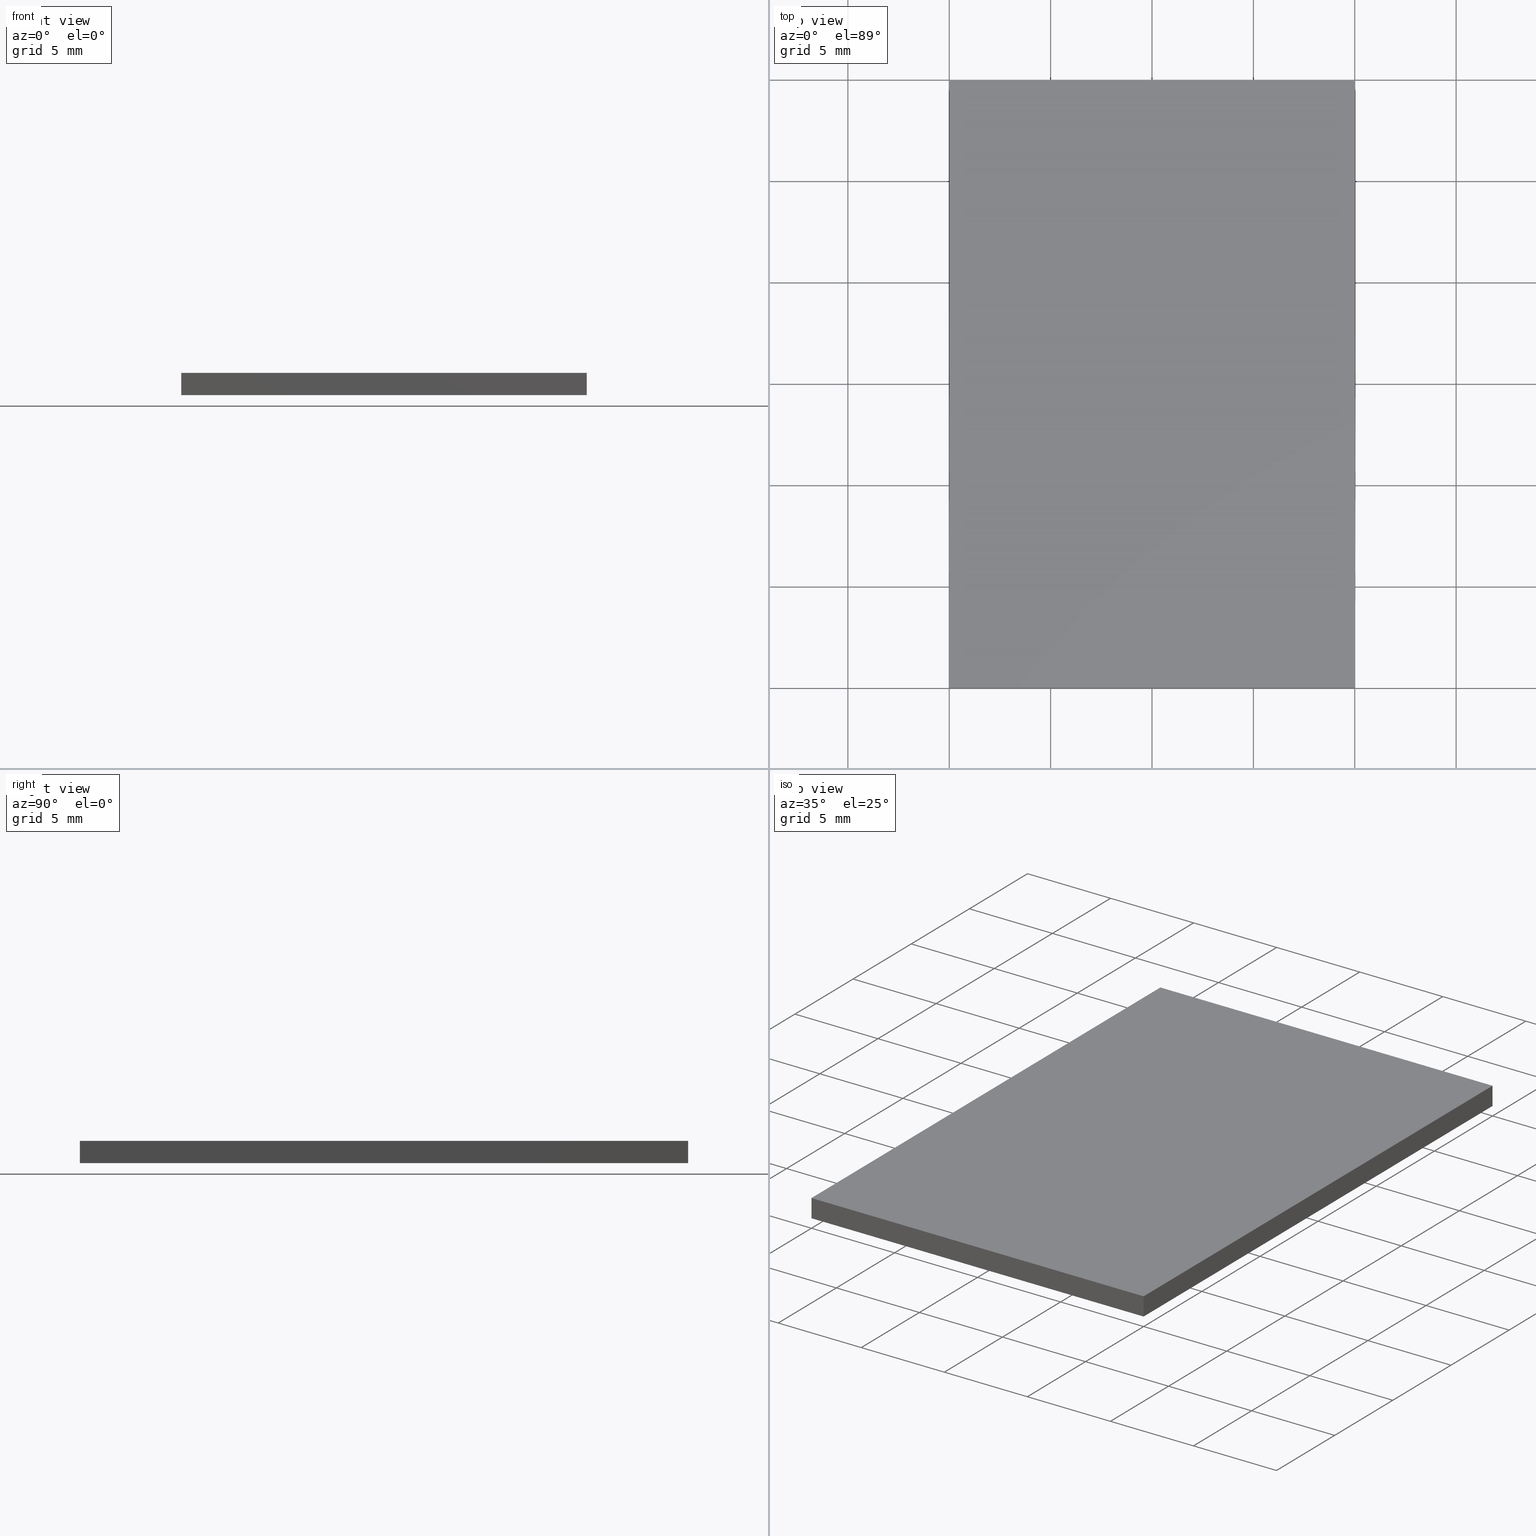
[diagram: canonical four-view strip — front | top / right | iso, engineering-drawing reading convention]
A machine part, canonical four-view strip (front | top / right | iso — engineering-drawing reading convention). The complete STEP part file that produces these views, byte-faithful:
ISO-10303-21;
HEADER;
FILE_DESCRIPTION (( 'STEP AP203' ),
    '1' );
FILE_NAME ('348503.STEP',
    '2019-07-31T07:07:42',
    ( '' ),
    ( '' ),
    'SwSTEP 2.0',
    'SolidWorks 2016',
    '' );
FILE_SCHEMA (( 'CONFIG_CONTROL_DESIGN' ));
ENDSEC;

DATA;
#1 = APPROVAL_PERSON_ORGANIZATION ( #162, #69, #133 ) ;
#2 = VECTOR ( 'NONE', #271, 1000.000000000000000 ) ;
#3 = DIRECTION ( 'NONE',  ( -1.000000000000000000, 0.0000000000000000000, -0.0000000000000000000 ) ) ;
#4 = COORDINATED_UNIVERSAL_TIME_OFFSET ( 8, 0, .AHEAD. ) ;
#5 = CARTESIAN_POINT ( 'NONE',  ( 0.0000000000000000000, 0.0000000000000000000, 0.0000000000000000000 ) ) ;
#6 = AXIS2_PLACEMENT_3D ( 'NONE', #301, #53, #303 ) ;
#7 = CARTESIAN_POINT ( 'NONE',  ( -10.00000000000000200, -14.99999999999999600, 1.100000000000000100 ) ) ;
#8 = CARTESIAN_POINT ( 'NONE',  ( -10.00000000000000200, 15.00000000000000400, 1.100000000000000100 ) ) ;
#9 = DATE_AND_TIME ( #70, #16 ) ;
#10 = ORIENTED_EDGE ( 'NONE', *, *, #236, .T. ) ;
#11 = APPLICATION_CONTEXT ( 'configuration controlled 3d designs of mechanical parts and assemblies' ) ;
#12 = EDGE_CURVE ( 'NONE', #298, #158, #166, .T. ) ;
#13 = ORIENTED_EDGE ( 'NONE', *, *, #283, .F. ) ;
#14 = LOCAL_TIME ( 15, 7, 42.00000000000000000, #77 ) ;
#15 = ADVANCED_FACE ( 'NONE', ( #41 ), #294, .F. ) ;
#16 = LOCAL_TIME ( 15, 7, 42.00000000000000000, #310 ) ;
#17 = CARTESIAN_POINT ( 'NONE',  ( -10.00000000000000200, -14.99999999999999600, 0.0000000000000000000 ) ) ;
#18 = CC_DESIGN_SECURITY_CLASSIFICATION ( #215, ( #235 ) ) ;
#19 = CALENDAR_DATE ( 2019, 31, 7 ) ;
#20 = EDGE_CURVE ( 'NONE', #193, #72, #65, .T. ) ;
#21 = LINE ( 'NONE', #212, #308 ) ;
#22 = CC_DESIGN_PERSON_AND_ORGANIZATION_ASSIGNMENT ( #59, #38, ( #222 ) ) ;
#23 = CARTESIAN_POINT ( 'NONE',  ( -10.00000000000000200, -14.99999999999999600, 1.100000000000000100 ) ) ;
#24 = ORIENTED_EDGE ( 'NONE', *, *, #66, .F. ) ;
#25 = PRODUCT_DEFINITION ( 'δ֪', '', #235, #93 ) ;
#26 = COORDINATED_UNIVERSAL_TIME_OFFSET ( 8, 0, .AHEAD. ) ;
#27 = DIRECTION ( 'NONE',  ( -0.0000000000000000000, -0.0000000000000000000, -1.000000000000000000 ) ) ;
#28 = DIRECTION ( 'NONE',  ( 1.000000000000000000, 0.0000000000000000000, 0.0000000000000000000 ) ) ;
#29 = VECTOR ( 'NONE', #175, 1000.000000000000000 ) ;
#30 = CARTESIAN_POINT ( 'NONE',  ( 9.999999999999998200, 15.00000000000000400, 1.100000000000000100 ) ) ;
#31 = ORIENTED_EDGE ( 'NONE', *, *, #242, .F. ) ;
#32 = APPLICATION_PROTOCOL_DEFINITION ( 'international standard', 'config_control_design', 1994, #307 ) ;
#33 = DIRECTION ( 'NONE',  ( -1.000000000000000000, -0.0000000000000000000, -0.0000000000000000000 ) ) ;
#34 = APPLICATION_CONTEXT ( 'configuration controlled 3d designs of mechanical parts and assemblies' ) ;
#35 = CARTESIAN_POINT ( 'NONE',  ( 9.999999999999998200, 15.00000000000000400, 1.100000000000000100 ) ) ;
#36 =( LENGTH_UNIT ( ) NAMED_UNIT ( * ) SI_UNIT ( .MILLI., .METRE. ) );
#37 = PERSON_AND_ORGANIZATION_ROLE ( 'creator' ) ;
#38 = PERSON_AND_ORGANIZATION_ROLE ( 'creator' ) ;
#39 = COORDINATED_UNIVERSAL_TIME_OFFSET ( 8, 0, .AHEAD. ) ;
#40 = EDGE_CURVE ( 'NONE', #72, #298, #147, .T. ) ;
#41 = FACE_OUTER_BOUND ( 'NONE', #302, .T. ) ;
#42 = CALENDAR_DATE ( 2019, 31, 7 ) ;
#43 = CC_DESIGN_DATE_AND_TIME_ASSIGNMENT ( #123, #107, ( #121 ) ) ;
#44 = CC_DESIGN_DATE_AND_TIME_ASSIGNMENT ( #64, #250, ( #25 ) ) ;
#45 = ADVANCED_BREP_SHAPE_REPRESENTATION ( '348503', ( #163, #104 ), #114 ) ;
#46 = EDGE_CURVE ( 'NONE', #159, #158, #256, .T. ) ;
#47 = DATE_AND_TIME ( #216, #115 ) ;
#48 = ADVANCED_FACE ( 'NONE', ( #141 ), #126, .T. ) ;
#49 = CALENDAR_DATE ( 2019, 31, 7 ) ;
#50 = CARTESIAN_POINT ( 'NONE',  ( -10.00000000000000200, 15.00000000000000400, 1.100000000000000100 ) ) ;
#51 = DIRECTION ( 'NONE',  ( -1.000000000000000000, 0.0000000000000000000, 0.0000000000000000000 ) ) ;
#52 = PERSON_AND_ORGANIZATION ( #220, #237 ) ;
#53 = DIRECTION ( 'NONE',  ( 0.0000000000000000000, 1.000000000000000000, 0.0000000000000000000 ) ) ;
#54 = CC_DESIGN_DATE_AND_TIME_ASSIGNMENT ( #313, #103, ( #266 ) ) ;
#55 = APPROVAL_ROLE ( '' ) ;
#56 = PLANE ( 'NONE',  #151 ) ;
#57 = MECHANICAL_CONTEXT ( 'NONE', #307, 'mechanical' ) ;
#58 = CC_DESIGN_PERSON_AND_ORGANIZATION_ASSIGNMENT ( #239, #37, ( #235 ) ) ;
#59 = PERSON_AND_ORGANIZATION ( #220, #237 ) ;
#60 = DIRECTION ( 'NONE',  ( -0.0000000000000000000, -0.0000000000000000000, -1.000000000000000000 ) ) ;
#61 = ORIENTED_EDGE ( 'NONE', *, *, #66, .T. ) ;
#62 = PERSON_AND_ORGANIZATION ( #220, #237 ) ;
#63 = DESIGN_CONTEXT ( 'detailed design', #34, 'design' ) ;
#64 = DATE_AND_TIME ( #19, #196 ) ;
#65 = LINE ( 'NONE', #274, #2 ) ;
#66 = EDGE_CURVE ( 'NONE', #193, #164, #138, .T. ) ;
#67 = SHAPE_DEFINITION_REPRESENTATION ( #241, #45 ) ;
#68 = PLANE ( 'NONE',  #173 ) ;
#69 = APPROVAL ( #177, 'δָ��' ) ;
#70 = CALENDAR_DATE ( 2019, 31, 7 ) ;
#71 = DIRECTION ( 'NONE',  ( -0.0000000000000000000, -0.0000000000000000000, -1.000000000000000000 ) ) ;
#72 = VERTEX_POINT ( 'NONE', #30 ) ;
#73 = CC_DESIGN_DATE_AND_TIME_ASSIGNMENT ( #9, #130, ( #215 ) ) ;
#74 = APPROVAL_PERSON_ORGANIZATION ( #112, #233, #105 ) ;
#75 = AXIS2_PLACEMENT_3D ( 'NONE', #23, #142, #315 ) ;
#76 = DIRECTION ( 'NONE',  ( 0.0000000000000000000, -1.000000000000000000, 0.0000000000000000000 ) ) ;
#77 = COORDINATED_UNIVERSAL_TIME_OFFSET ( 8, 0, .AHEAD. ) ;
#78 = CARTESIAN_POINT ( 'NONE',  ( -10.00000000000000200, -14.99999999999999600, 1.100000000000000100 ) ) ;
#79 = VECTOR ( 'NONE', #60, 1000.000000000000000 ) ;
#80 = DIRECTION ( 'NONE',  ( 0.0000000000000000000, 0.0000000000000000000, 1.000000000000000000 ) ) ;
#81 = PERSON_AND_ORGANIZATION_ROLE ( 'design_owner' ) ;
#82 = COORDINATED_UNIVERSAL_TIME_OFFSET ( 8, 0, .AHEAD. ) ;
#83 = MECHANICAL_CONTEXT ( 'NONE', #11, 'mechanical' ) ;
#84 = DIRECTION ( 'NONE',  ( 0.0000000000000000000, 1.000000000000000000, 0.0000000000000000000 ) ) ;
#85 = DIRECTION ( 'NONE',  ( 0.0000000000000000000, 0.0000000000000000000, 1.000000000000000000 ) ) ;
#86 = APPROVAL_DATE_TIME ( #127, #270 ) ;
#87 = LINE ( 'NONE', #78, #232 ) ;
#88 = CC_DESIGN_PERSON_AND_ORGANIZATION_ASSIGNMENT ( #169, #253, ( #121 ) ) ;
#89 = ORIENTED_EDGE ( 'NONE', *, *, #236, .F. ) ;
#90 = APPROVAL ( #178, 'δָ��' ) ;
#91 = EDGE_CURVE ( 'NONE', #298, #120, #87, .T. ) ;
#92 = PERSON_AND_ORGANIZATION ( #220, #237 ) ;
#93 = DESIGN_CONTEXT ( 'detailed design', #199, 'design' ) ;
#94 = ORIENTED_EDGE ( 'NONE', *, *, #124, .F. ) ;
#95 = CC_DESIGN_SECURITY_CLASSIFICATION ( #266, ( #222 ) ) ;
#96 = ORIENTED_EDGE ( 'NONE', *, *, #46, .T. ) ;
#97 = ORIENTED_EDGE ( 'NONE', *, *, #12, .F. ) ;
#98 = CARTESIAN_POINT ( 'NONE',  ( 9.999999999999998200, -14.99999999999999600, 1.100000000000000100 ) ) ;
#99 = APPROVAL_PERSON_ORGANIZATION ( #110, #135, #174 ) ;
#100 = FACE_OUTER_BOUND ( 'NONE', #213, .T. ) ;
#101 = CARTESIAN_POINT ( 'NONE',  ( 9.999999999999998200, 15.00000000000000400, 0.0000000000000000000 ) ) ;
#102 = CARTESIAN_POINT ( 'NONE',  ( -10.00000000000000200, 15.00000000000000400, 1.100000000000000100 ) ) ;
#103 = DATE_TIME_ROLE ( 'classification_date' ) ;
#104 = AXIS2_PLACEMENT_3D ( 'NONE', #254, #155, #227 ) ;
#105 = APPROVAL_ROLE ( '' ) ;
#106 = SECURITY_CLASSIFICATION_LEVEL ( 'unclassified' ) ;
#107 = DATE_TIME_ROLE ( 'creation_date' ) ;
#108 = CC_DESIGN_APPROVAL ( #90, ( #215 ) ) ;
#109 = APPLICATION_PROTOCOL_DEFINITION ( 'international standard', 'config_control_design', 1994, #34 ) ;
#110 = PERSON_AND_ORGANIZATION ( #220, #237 ) ;
#111 = UNCERTAINTY_MEASURE_WITH_UNIT (LENGTH_MEASURE( 1.000000000000000100E-005 ), #36, 'distance_accuracy_value', 'NONE');
#112 = PERSON_AND_ORGANIZATION ( #220, #237 ) ;
#113 = LINE ( 'NONE', #7, #79 ) ;
#114 =( GEOMETRIC_REPRESENTATION_CONTEXT ( 3 ) GLOBAL_UNCERTAINTY_ASSIGNED_CONTEXT ( ( #111 ) ) GLOBAL_UNIT_ASSIGNED_CONTEXT ( ( #36, #129, #179 ) ) REPRESENTATION_CONTEXT ( 'NONE', 'WORKASPACE' ) );
#115 = LOCAL_TIME ( 15, 7, 42.00000000000000000, #39 ) ;
#116 = AXIS2_PLACEMENT_3D ( 'NONE', #5, #299, #3 ) ;
#117 = APPROVAL_DATE_TIME ( #246, #191 ) ;
#118 = FACE_OUTER_BOUND ( 'NONE', #219, .T. ) ;
#119 = CALENDAR_DATE ( 2019, 31, 7 ) ;
#120 = VERTEX_POINT ( 'NONE', #150 ) ;
#121 = PRODUCT_DEFINITION ( 'δ֪', '', #222, #63 ) ;
#122 = DIRECTION ( 'NONE',  ( 0.0000000000000000000, 0.0000000000000000000, -1.000000000000000000 ) ) ;
#123 = DATE_AND_TIME ( #119, #134 ) ;
#124 = EDGE_CURVE ( 'NONE', #120, #193, #182, .T. ) ;
#125 = VECTOR ( 'NONE', #84, 1000.000000000000000 ) ;
#126 = PLANE ( 'NONE',  #116 ) ;
#127 = DATE_AND_TIME ( #49, #186 ) ;
#128 = CARTESIAN_POINT ( 'NONE',  ( -10.00000000000000200, 15.00000000000000400, 0.0000000000000000000 ) ) ;
#129 =( NAMED_UNIT ( * ) PLANE_ANGLE_UNIT ( ) SI_UNIT ( $, .RADIAN. ) );
#130 = DATE_TIME_ROLE ( 'classification_date' ) ;
#131 = PERSON_AND_ORGANIZATION ( #220, #237 ) ;
#132 = APPROVAL_STATUS ( 'not_yet_approved' ) ;
#133 = APPROVAL_ROLE ( '' ) ;
#134 = LOCAL_TIME ( 15, 7, 42.00000000000000000, #157 ) ;
#135 = APPROVAL ( #205, 'δָ��' ) ;
#136 = ORIENTED_EDGE ( 'NONE', *, *, #12, .T. ) ;
#137 = DIRECTION ( 'NONE',  ( -0.0000000000000000000, -1.000000000000000000, -0.0000000000000000000 ) ) ;
#138 = LINE ( 'NONE', #145, #187 ) ;
#139 = APPROVAL_PERSON_ORGANIZATION ( #131, #90, #204 ) ;
#140 = CC_DESIGN_PERSON_AND_ORGANIZATION_ASSIGNMENT ( #171, #154, ( #197 ) ) ;
#141 = FACE_OUTER_BOUND ( 'NONE', #291, .T. ) ;
#142 = DIRECTION ( 'NONE',  ( 1.000000000000000000, 0.0000000000000000000, 0.0000000000000000000 ) ) ;
#143 = ORIENTED_EDGE ( 'NONE', *, *, #296, .T. ) ;
#144 = APPROVAL_PERSON_ORGANIZATION ( #189, #270, #55 ) ;
#145 = CARTESIAN_POINT ( 'NONE',  ( 9.999999999999998200, -14.99999999999999600, 1.100000000000000100 ) ) ;
#146 = DIRECTION ( 'NONE',  ( -0.0000000000000000000, -0.0000000000000000000, -1.000000000000000000 ) ) ;
#147 = LINE ( 'NONE', #102, #273 ) ;
#148 = ORIENTED_EDGE ( 'NONE', *, *, #242, .T. ) ;
#149 = CARTESIAN_POINT ( 'NONE',  ( -10.00000000000000200, -14.99999999999999600, 0.0000000000000000000 ) ) ;
#150 = CARTESIAN_POINT ( 'NONE',  ( -10.00000000000000200, -14.99999999999999600, 1.100000000000000100 ) ) ;
#151 = AXIS2_PLACEMENT_3D ( 'NONE', #50, #76, #244 ) ;
#152 = PERSON_AND_ORGANIZATION_ROLE ( 'design_supplier' ) ;
#153 = CLOSED_SHELL ( 'NONE', ( #263, #161, #15, #288, #260, #48 ) ) ;
#154 = PERSON_AND_ORGANIZATION_ROLE ( 'design_owner' ) ;
#155 = DIRECTION ( 'NONE',  ( 0.0000000000000000000, 0.0000000000000000000, 1.000000000000000000 ) ) ;
#156 = CC_DESIGN_PERSON_AND_ORGANIZATION_ASSIGNMENT ( #207, #305, ( #235 ) ) ;
#157 = COORDINATED_UNIVERSAL_TIME_OFFSET ( 8, 0, .AHEAD. ) ;
#158 = VERTEX_POINT ( 'NONE', #277 ) ;
#159 = VERTEX_POINT ( 'NONE', #101 ) ;
#160 = EDGE_LOOP ( 'NONE', ( #211, #280, #293, #218 ) ) ;
#161 = ADVANCED_FACE ( 'NONE', ( #118 ), #56, .F. ) ;
#162 = PERSON_AND_ORGANIZATION ( #220, #237 ) ;
#163 = MANIFOLD_SOLID_BREP ( '͹̨-����1', #153 ) ;
#164 = VERTEX_POINT ( 'NONE', #248 ) ;
#165 = VECTOR ( 'NONE', #28, 1000.000000000000000 ) ;
#166 = LINE ( 'NONE', #214, #195 ) ;
#167 = LOCAL_TIME ( 15, 7, 42.00000000000000000, #292 ) ;
#168 = AXIS2_PLACEMENT_3D ( 'NONE', #228, #80, #304 ) ;
#169 = PERSON_AND_ORGANIZATION ( #220, #237 ) ;
#170 = PLANE ( 'NONE',  #6 ) ;
#171 = PERSON_AND_ORGANIZATION ( #220, #237 ) ;
#172 = DIRECTION ( 'NONE',  ( -0.0000000000000000000, -1.000000000000000000, -0.0000000000000000000 ) ) ;
#173 = AXIS2_PLACEMENT_3D ( 'NONE', #223, #51, #85 ) ;
#174 = APPROVAL_ROLE ( '' ) ;
#175 = DIRECTION ( 'NONE',  ( -1.000000000000000000, -0.0000000000000000000, -0.0000000000000000000 ) ) ;
#176 = APPLICATION_PROTOCOL_DEFINITION ( 'international standard', 'config_control_design', 1994, #11 ) ;
#177 = APPROVAL_STATUS ( 'not_yet_approved' ) ;
#178 = APPROVAL_STATUS ( 'not_yet_approved' ) ;
#179 =( NAMED_UNIT ( * ) SI_UNIT ( $, .STERADIAN. ) SOLID_ANGLE_UNIT ( ) );
#180 = APPROVAL_DATE_TIME ( #192, #90 ) ;
#181 = DIRECTION ( 'NONE',  ( 1.000000000000000000, 0.0000000000000000000, 0.0000000000000000000 ) ) ;
#182 = LINE ( 'NONE', #217, #165 ) ;
#183 = FACE_OUTER_BOUND ( 'NONE', #160, .T. ) ;
#184 = APPROVAL_DATE_TIME ( #243, #69 ) ;
#185 = CC_DESIGN_APPROVAL ( #135, ( #222 ) ) ;
#186 = LOCAL_TIME ( 15, 7, 42.00000000000000000, #284 ) ;
#187 = VECTOR ( 'NONE', #27, 1000.000000000000000 ) ;
#188 = LINE ( 'NONE', #229, #125 ) ;
#189 = PERSON_AND_ORGANIZATION ( #220, #237 ) ;
#190 = CC_DESIGN_APPROVAL ( #233, ( #121 ) ) ;
#191 = APPROVAL ( #278, 'δָ��' ) ;
#192 = DATE_AND_TIME ( #234, #14 ) ;
#193 = VERTEX_POINT ( 'NONE', #98 ) ;
#194 = PRODUCT ( '348503', '348503', '', ( #57 ) ) ;
#195 = VECTOR ( 'NONE', #71, 1000.000000000000000 ) ;
#196 = LOCAL_TIME ( 15, 7, 42.00000000000000000, #4 ) ;
#197 = PRODUCT ( '348503', '348503', '', ( #83 ) ) ;
#198 = EDGE_LOOP ( 'NONE', ( #249, #89, #226, #61 ) ) ;
#199 = APPLICATION_CONTEXT ( 'configuration controlled 3d designs of mechanical parts and assemblies' ) ;
#200 = ORIENTED_EDGE ( 'NONE', *, *, #296, .F. ) ;
#201 = APPROVAL_STATUS ( 'not_yet_approved' ) ;
#202 = CC_DESIGN_PERSON_AND_ORGANIZATION_ASSIGNMENT ( #203, #152, ( #222 ) ) ;
#203 = PERSON_AND_ORGANIZATION ( #220, #237 ) ;
#204 = APPROVAL_ROLE ( '' ) ;
#205 = APPROVAL_STATUS ( 'not_yet_approved' ) ;
#206 = CC_DESIGN_PERSON_AND_ORGANIZATION_ASSIGNMENT ( #62, #225, ( #25 ) ) ;
#207 = PERSON_AND_ORGANIZATION ( #220, #237 ) ;
#208 = LINE ( 'NONE', #17, #238 ) ;
#209 = LOCAL_TIME ( 15, 7, 42.00000000000000000, #82 ) ;
#210 = ORIENTED_EDGE ( 'NONE', *, *, #283, .T. ) ;
#211 = ORIENTED_EDGE ( 'NONE', *, *, #20, .T. ) ;
#212 = CARTESIAN_POINT ( 'NONE',  ( -10.00000000000000200, -14.99999999999999600, 0.0000000000000000000 ) ) ;
#213 = EDGE_LOOP ( 'NONE', ( #210, #24, #94, #143 ) ) ;
#214 = CARTESIAN_POINT ( 'NONE',  ( -10.00000000000000200, 15.00000000000000400, 1.100000000000000100 ) ) ;
#215 = SECURITY_CLASSIFICATION ( '', '', #106 ) ;
#216 = CALENDAR_DATE ( 2019, 31, 7 ) ;
#217 = CARTESIAN_POINT ( 'NONE',  ( -10.00000000000000200, -14.99999999999999600, 1.100000000000000100 ) ) ;
#218 = ORIENTED_EDGE ( 'NONE', *, *, #124, .T. ) ;
#219 = EDGE_LOOP ( 'NONE', ( #96, #97, #258, #10 ) ) ;
#220 = PERSON ( 'δָ��', 'δָ��', 'δָ��', ('δָ��'), ('δָ��'), ('δָ��') ) ;
#221 = ORIENTED_EDGE ( 'NONE', *, *, #91, .F. ) ;
#222 = PRODUCT_DEFINITION_FORMATION_WITH_SPECIFIED_SOURCE ( '�κ�', '', #197, .NOT_KNOWN. ) ;
#223 = CARTESIAN_POINT ( 'NONE',  ( 9.999999999999998200, -14.99999999999999600, 1.100000000000000100 ) ) ;
#224 = APPROVAL_DATE_TIME ( #295, #233 ) ;
#225 = PERSON_AND_ORGANIZATION_ROLE ( 'creator' ) ;
#226 = ORIENTED_EDGE ( 'NONE', *, *, #20, .F. ) ;
#227 = DIRECTION ( 'NONE',  ( 1.000000000000000000, 0.0000000000000000000, 0.0000000000000000000 ) ) ;
#228 = CARTESIAN_POINT ( 'NONE',  ( 0.0000000000000000000, 0.0000000000000000000, 0.0000000000000000000 ) ) ;
#229 = CARTESIAN_POINT ( 'NONE',  ( 9.999999999999998200, -14.99999999999999600, 0.0000000000000000000 ) ) ;
#230 = CALENDAR_DATE ( 2019, 31, 7 ) ;
#231 = PRODUCT_DEFINITION_SHAPE ( 'NONE', 'NONE',  #121 ) ;
#232 = VECTOR ( 'NONE', #172, 1000.000000000000000 ) ;
#233 = APPROVAL ( #132, 'δָ��' ) ;
#234 = CALENDAR_DATE ( 2019, 31, 7 ) ;
#235 = PRODUCT_DEFINITION_FORMATION_WITH_SPECIFIED_SOURCE ( '�κ�', '', #194, .NOT_KNOWN. ) ;
#236 = EDGE_CURVE ( 'NONE', #72, #159, #285, .T. ) ;
#237 = ORGANIZATION ( 'δָ��', 'δָ��', '' ) ;
#238 = VECTOR ( 'NONE', #137, 1000.000000000000000 ) ;
#239 = PERSON_AND_ORGANIZATION ( #220, #237 ) ;
#240 = CC_DESIGN_PERSON_AND_ORGANIZATION_ASSIGNMENT ( #92, #282, ( #266 ) ) ;
#241 = PRODUCT_DEFINITION_SHAPE ( 'NONE', 'NONE',  #25 ) ;
#242 = EDGE_CURVE ( 'NONE', #158, #262, #208, .T. ) ;
#243 = DATE_AND_TIME ( #264, #267 ) ;
#244 = DIRECTION ( 'NONE',  ( 0.0000000000000000000, -0.0000000000000000000, -1.000000000000000000 ) ) ;
#245 = DIRECTION ( 'NONE',  ( -1.000000000000000000, 0.0000000000000000000, -0.0000000000000000000 ) ) ;
#246 = DATE_AND_TIME ( #230, #314 ) ;
#247 = SECURITY_CLASSIFICATION_LEVEL ( 'unclassified' ) ;
#248 = CARTESIAN_POINT ( 'NONE',  ( 9.999999999999998200, -14.99999999999999600, 0.0000000000000000000 ) ) ;
#249 = ORIENTED_EDGE ( 'NONE', *, *, #309, .T. ) ;
#250 = DATE_TIME_ROLE ( 'creation_date' ) ;
#251 = CC_DESIGN_APPROVAL ( #69, ( #266 ) ) ;
#252 = APPROVAL_ROLE ( '' ) ;
#253 = PERSON_AND_ORGANIZATION_ROLE ( 'creator' ) ;
#254 = CARTESIAN_POINT ( 'NONE',  ( 0.0000000000000000000, 0.0000000000000000000, 0.0000000000000000000 ) ) ;
#255 = CC_DESIGN_PERSON_AND_ORGANIZATION_ASSIGNMENT ( #52, #279, ( #215 ) ) ;
#256 = LINE ( 'NONE', #128, #29 ) ;
#257 = APPROVAL_PERSON_ORGANIZATION ( #297, #191, #252 ) ;
#258 = ORIENTED_EDGE ( 'NONE', *, *, #40, .F. ) ;
#259 = PRODUCT_RELATED_PRODUCT_CATEGORY ( 'detail', '', ( #197 ) ) ;
#260 = ADVANCED_FACE ( 'NONE', ( #183 ), #268, .F. ) ;
#261 = APPROVAL_DATE_TIME ( #47, #135 ) ;
#262 = VERTEX_POINT ( 'NONE', #149 ) ;
#263 = ADVANCED_FACE ( 'NONE', ( #300 ), #68, .F. ) ;
#264 = CALENDAR_DATE ( 2019, 31, 7 ) ;
#265 = VECTOR ( 'NONE', #146, 1000.000000000000000 ) ;
#266 = SECURITY_CLASSIFICATION ( '', '', #247 ) ;
#267 = LOCAL_TIME ( 15, 7, 42.00000000000000000, #26 ) ;
#268 = PLANE ( 'NONE',  #275 ) ;
#269 = CARTESIAN_POINT ( 'NONE',  ( 0.0000000000000000000, 0.0000000000000000000, 1.100000000000000100 ) ) ;
#270 = APPROVAL ( #201, 'δָ��' ) ;
#271 = DIRECTION ( 'NONE',  ( 0.0000000000000000000, 1.000000000000000000, 0.0000000000000000000 ) ) ;
#272 = COORDINATED_UNIVERSAL_TIME_OFFSET ( 8, 0, .AHEAD. ) ;
#273 = VECTOR ( 'NONE', #33, 1000.000000000000000 ) ;
#274 = CARTESIAN_POINT ( 'NONE',  ( 9.999999999999998200, -14.99999999999999600, 1.100000000000000100 ) ) ;
#275 = AXIS2_PLACEMENT_3D ( 'NONE', #269, #122, #245 ) ;
#276 = APPLICATION_PROTOCOL_DEFINITION ( 'international standard', 'config_control_design', 1994, #199 ) ;
#277 = CARTESIAN_POINT ( 'NONE',  ( -10.00000000000000200, 15.00000000000000400, 0.0000000000000000000 ) ) ;
#278 = APPROVAL_STATUS ( 'not_yet_approved' ) ;
#279 = PERSON_AND_ORGANIZATION_ROLE ( 'classification_officer' ) ;
#280 = ORIENTED_EDGE ( 'NONE', *, *, #40, .T. ) ;
#281 = PRODUCT_RELATED_PRODUCT_CATEGORY ( 'detail', '', ( #194 ) ) ;
#282 = PERSON_AND_ORGANIZATION_ROLE ( 'classification_officer' ) ;
#283 = EDGE_CURVE ( 'NONE', #262, #164, #21, .T. ) ;
#284 = COORDINATED_UNIVERSAL_TIME_OFFSET ( 8, 0, .AHEAD. ) ;
#285 = LINE ( 'NONE', #35, #265 ) ;
#286 = ORIENTED_EDGE ( 'NONE', *, *, #309, .F. ) ;
#287 = ORIENTED_EDGE ( 'NONE', *, *, #46, .F. ) ;
#288 = ADVANCED_FACE ( 'NONE', ( #100 ), #170, .F. ) ;
#289 = CC_DESIGN_APPROVAL ( #191, ( #235 ) ) ;
#290 = PERSON_AND_ORGANIZATION ( #220, #237 ) ;
#291 = EDGE_LOOP ( 'NONE', ( #286, #13, #31, #287 ) ) ;
#292 = COORDINATED_UNIVERSAL_TIME_OFFSET ( 8, 0, .AHEAD. ) ;
#293 = ORIENTED_EDGE ( 'NONE', *, *, #91, .T. ) ;
#294 = PLANE ( 'NONE',  #75 ) ;
#295 = DATE_AND_TIME ( #42, #167 ) ;
#296 = EDGE_CURVE ( 'NONE', #120, #262, #113, .T. ) ;
#297 = PERSON_AND_ORGANIZATION ( #220, #237 ) ;
#298 = VERTEX_POINT ( 'NONE', #8 ) ;
#299 = DIRECTION ( 'NONE',  ( 0.0000000000000000000, 0.0000000000000000000, -1.000000000000000000 ) ) ;
#300 = FACE_OUTER_BOUND ( 'NONE', #198, .T. ) ;
#301 = CARTESIAN_POINT ( 'NONE',  ( -10.00000000000000200, -14.99999999999999600, 1.100000000000000100 ) ) ;
#302 = EDGE_LOOP ( 'NONE', ( #148, #200, #221, #136 ) ) ;
#303 = DIRECTION ( 'NONE',  ( 0.0000000000000000000, -0.0000000000000000000, 1.000000000000000000 ) ) ;
#304 = DIRECTION ( 'NONE',  ( 1.000000000000000000, 0.0000000000000000000, 0.0000000000000000000 ) ) ;
#305 = PERSON_AND_ORGANIZATION_ROLE ( 'design_supplier' ) ;
#306 = CALENDAR_DATE ( 2019, 31, 7 ) ;
#307 = APPLICATION_CONTEXT ( 'configuration controlled 3d designs of mechanical parts and assemblies' ) ;
#308 = VECTOR ( 'NONE', #181, 1000.000000000000000 ) ;
#309 = EDGE_CURVE ( 'NONE', #164, #159, #188, .T. ) ;
#310 = COORDINATED_UNIVERSAL_TIME_OFFSET ( 8, 0, .AHEAD. ) ;
#311 = CC_DESIGN_PERSON_AND_ORGANIZATION_ASSIGNMENT ( #290, #81, ( #194 ) ) ;
#312 = CC_DESIGN_APPROVAL ( #270, ( #25 ) ) ;
#313 = DATE_AND_TIME ( #306, #209 ) ;
#314 = LOCAL_TIME ( 15, 7, 42.00000000000000000, #272 ) ;
#315 = DIRECTION ( 'NONE',  ( 0.0000000000000000000, 0.0000000000000000000, -1.000000000000000000 ) ) ;
ENDSEC;
END-ISO-10303-21;
